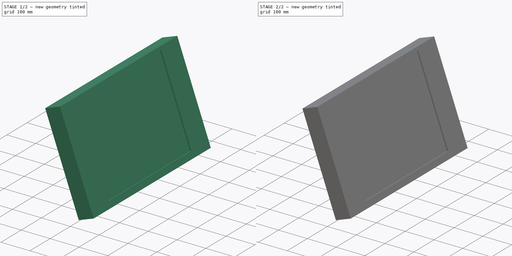
[diagram: build sequence overview — one tinted view per stage of 2, left to right]
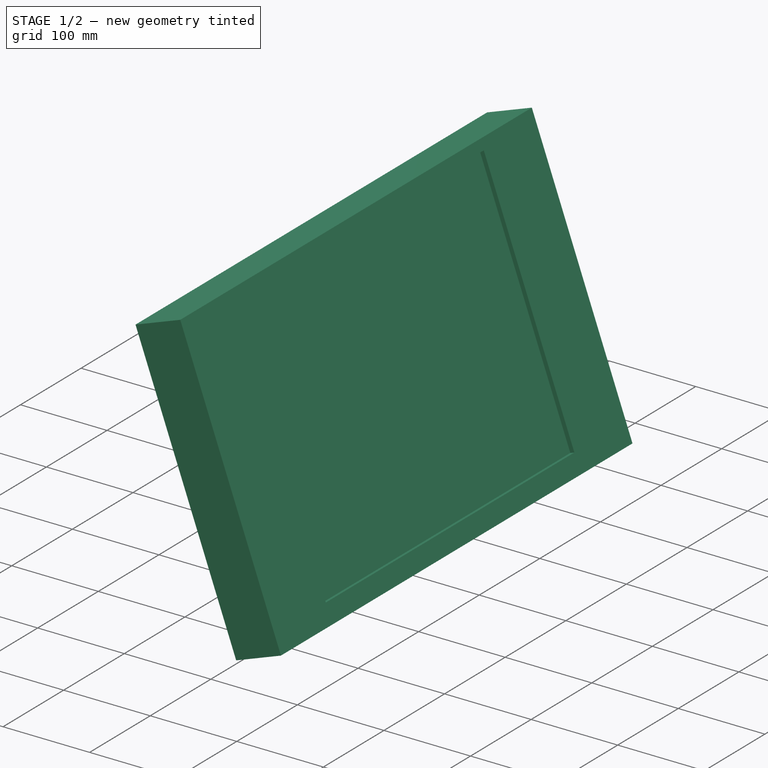
[diagram: stage 1 of 2 — iso view after this stage's code; geometry added in this stage tinted green]
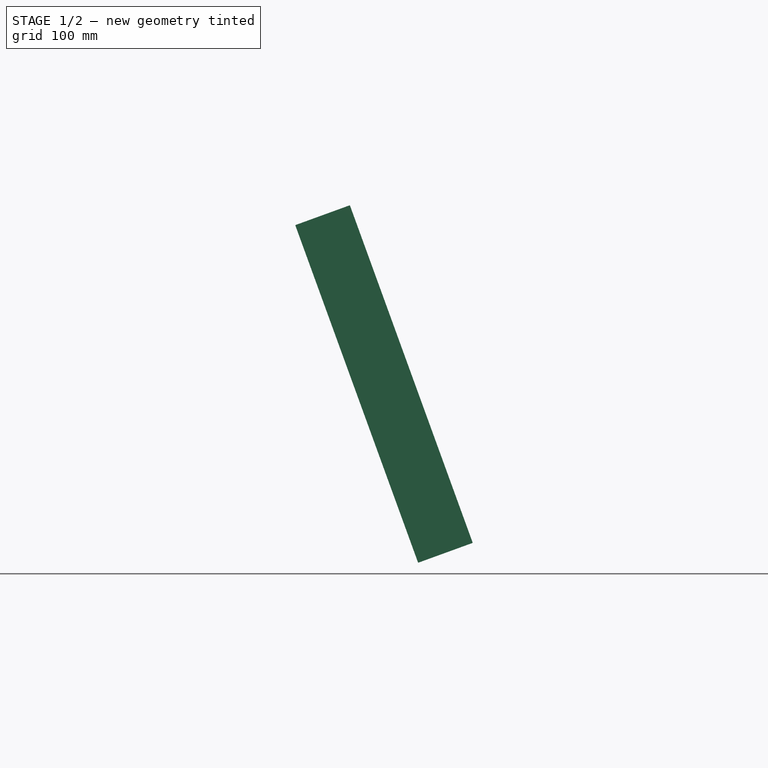
[diagram: stage 1 of 2 — front view after this stage's code; geometry added in this stage tinted green]
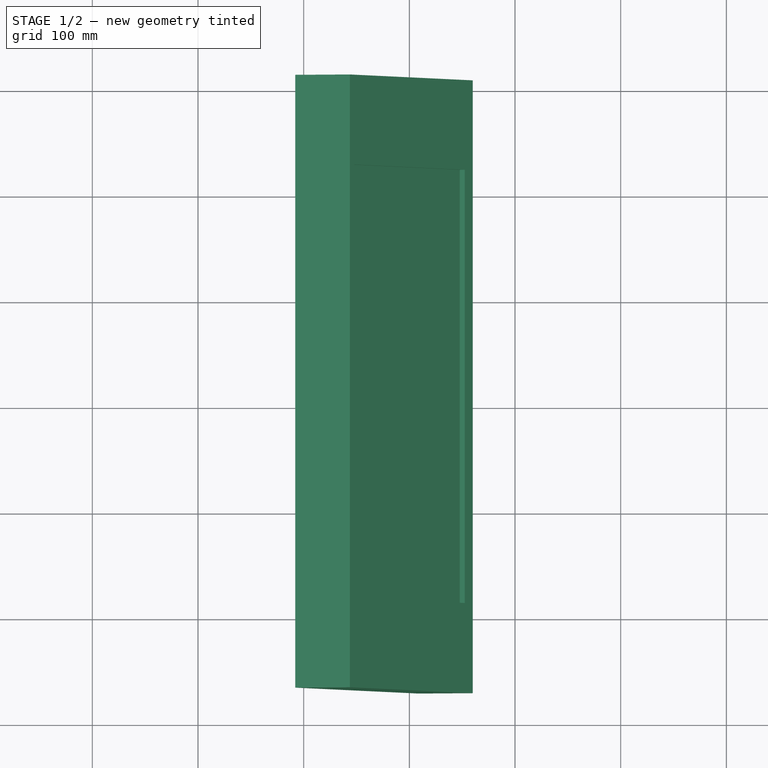
[diagram: stage 1 of 2 — top view after this stage's code; geometry added in this stage tinted green]
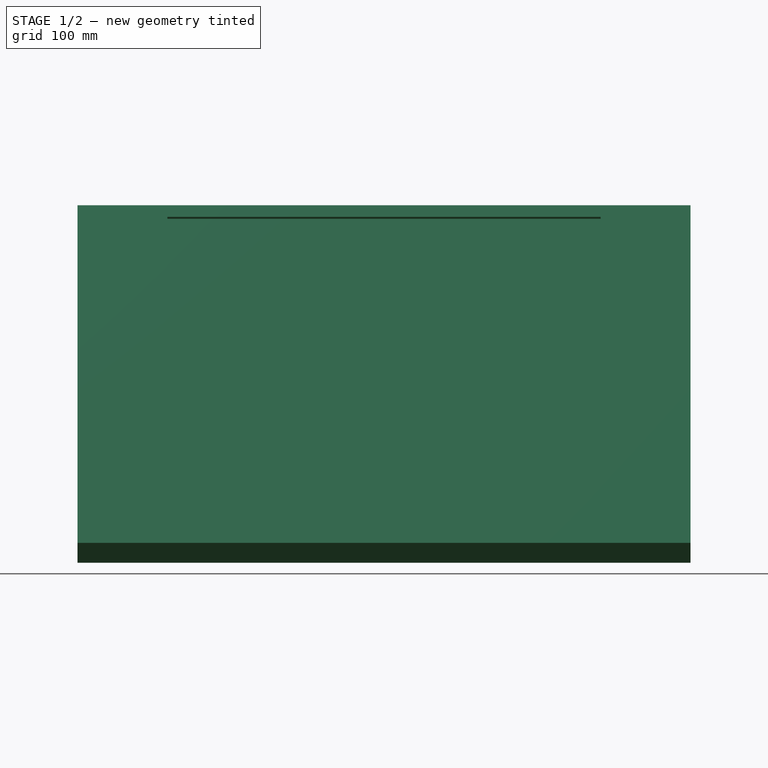
[diagram: stage 1 of 2 — right view after this stage's code; geometry added in this stage tinted green]
FCSTD DOCUMENT  (FreeCAD 0.17R13522 (Git))
Label: 1106_Monitor_339x283
License: All rights reserved
LicenseURL: http://en.wikipedia.org/wiki/All_rights_reserved
objects: Sketcher::SketchObject×4, PartDesign::Pad×2, PartDesign::Pocket×2, PartDesign::Body×1, App::Part×1, Spreadsheet::Sheet×1
note: 13 computed .brp shape members not serialized (recipe doc carries the construction recipe); baked Part::Feature solids carry a one-line shape summary decoded from their .brp

FEATURE [Sketcher::SketchObject] Sketch002
  MapMode = 5
  Placement = pos=(0,0,0) rot=(0,0.707107,0.707107;3.14159rad)
  Support = -> [XZ_Plane001]
  expr: Constraints[8] = Monitor.H_monitor
  expr: Constraints[7] = Monitor.D_monitor
  sketch-geometry (7):
    g0: LineSegment StartX=40 StartY=50 StartZ=0 EndX=156.287 EndY=369.495 EndZ=0
    g1: LineSegment StartX=156.287 StartY=369.495 StartZ=0 EndX=207.97 EndY=350.684 EndZ=0
    g2: LineSegment StartX=207.97 StartY=350.684 StartZ=0 EndX=91.6831 EndY=31.1889 EndZ=0
    g3: LineSegment StartX=91.6831 StartY=31.1889 StartZ=0 EndX=40 EndY=50 EndZ=0
    g4: LineSegment [constr] StartX=40 StartY=50 StartZ=0 EndX=0 EndY=0 EndZ=0
    g5: LineSegment [constr] StartX=0 StartY=0 StartZ=0 EndX=0 EndY=50 EndZ=0
    g6: LineSegment [constr] StartX=0 StartY=50 StartZ=0 EndX=40 EndY=50 EndZ=0
  constraints (19):
    c: Coincident(g2,g1)
    c: Coincident(g3,g2)
    c: Coincident(g3,g0)
    c: Perpendicular(g1,g0)
    c: Perpendicular(g2,g1)
    c: Perpendicular(g2,g3)
    c: Coincident(g1,g0)
    c: Distance(g1) = 55
    c: Distance(g2) = 340
    c: Coincident(g4,g0)
    c: Coincident(g4,g-1)
    c: Coincident(g5,g-1)
    c: PointOnObject(g5,g-2)
    c: Coincident(g6,g5)
    c: Coincident(g6,g0)
    c: Horizontal(g6)
    c: Distance(g5) = 50
    c: Distance(g6) = 40
    c: Angle(g0,g6) = 1.91986
FEATURE [PartDesign::Pad] Pad002
  Length = 410
  Length2 = 170
  Placement = pos=(0,0,0) rot=(1,0,0;1.5708rad)
  Profile = -> Sketch002
  Type = 4
  expr: Length = Monitor.W_monitor
FEATURE [Sketcher::SketchObject] Sketch
  ExternalGeometry = -> [Pad002]
  MapMode = 5
  Placement = pos=(-19.2512,1e-12,-7.00686) rot=(0.573576,0,0.819152;3.14159rad)
  Support = -> [Pad002]
  expr: Constraints[19] = Monitor.W_monitor
  expr: Constraints[18] = Monitor.H_monitor * 0.90000000000000002
  sketch-geometry (8):
    g0: LineSegment StartX=82.9319 StartY=85 StartZ=0 EndX=388.932 EndY=85 EndZ=0
    g1: LineSegment StartX=388.932 StartY=85 StartZ=0 EndX=388.932 EndY=-325 EndZ=0
    g2: LineSegment StartX=388.932 StartY=-325 StartZ=0 EndX=82.9319 EndY=-325 EndZ=0
    g3: LineSegment StartX=82.9319 StartY=-325 StartZ=0 EndX=82.9319 EndY=-120 EndZ=0
    g4: LineSegment StartX=82.9319 StartY=-120 StartZ=0 EndX=82.9319 EndY=85 EndZ=0
    g5: LineSegment [constr] StartX=60.6654 StartY=-410 StartZ=0 EndX=60.6654 EndY=-120 EndZ=0
    g6: LineSegment [constr] StartX=60.6654 StartY=-120 StartZ=0 EndX=60.6654 EndY=170 EndZ=0
    g7: LineSegment [constr] StartX=82.9319 StartY=-120 StartZ=0 EndX=60.6654 EndY=-120 EndZ=0
  constraints (21):
    c: Coincident(g0,g1)
    c: Coincident(g1,g2)
    c: Horizontal(g0)
    c: Horizontal(g2)
    c: Vertical(g1)
    c: Coincident(g3,g2)
    c: Coincident(g4,g3)
    c: Coincident(g4,g0)
    c: Parallel(g3,g4)
    c: Equal(g3,g4)
    c: Coincident(g5,g-6)
    c: Coincident(g6,g5)
    c: Coincident(g6,g-6)
    c: Equal(g5,g6)
    c: Parallel(g6,g5)
    c: Coincident(g7,g3)
    c: Coincident(g7,g5)
    c: Perpendicular(g4,g7)
    c: DistanceX(g0,g0) = 306
    c: DistanceY(g1,g1) = 410
    c: Horizontal(g7)
FEATURE [PartDesign::Pocket] Pocket
  BaseFeature = -> Pad002
  Length = 5
  Length2 = 100
  Placement = pos=(0,0,0) rot=(1,0,0;1.5708rad)
  Profile = -> Sketch
  Type = 0
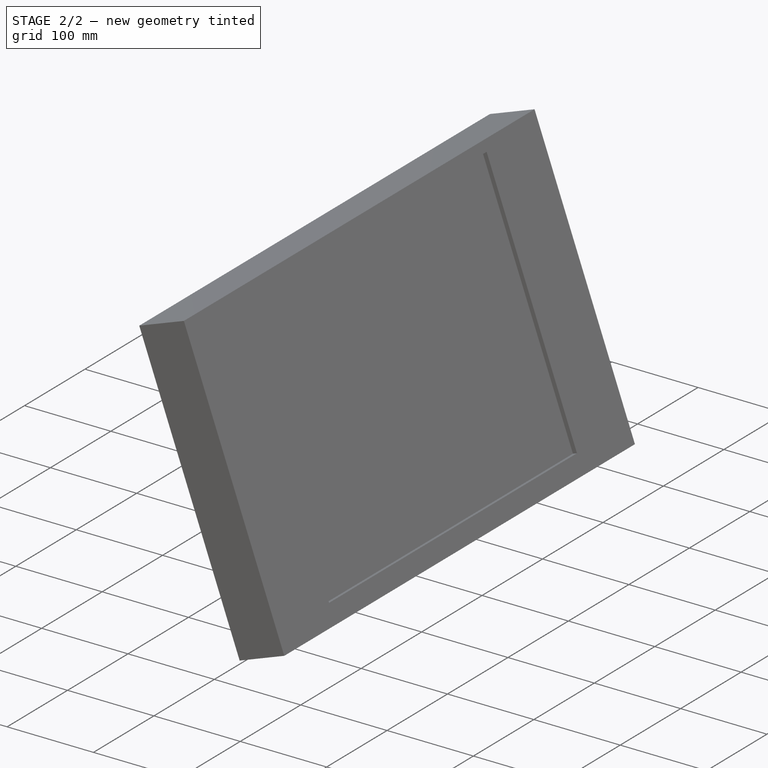
[diagram: stage 2 of 2 — iso view after this stage's code; geometry added in this stage tinted green]
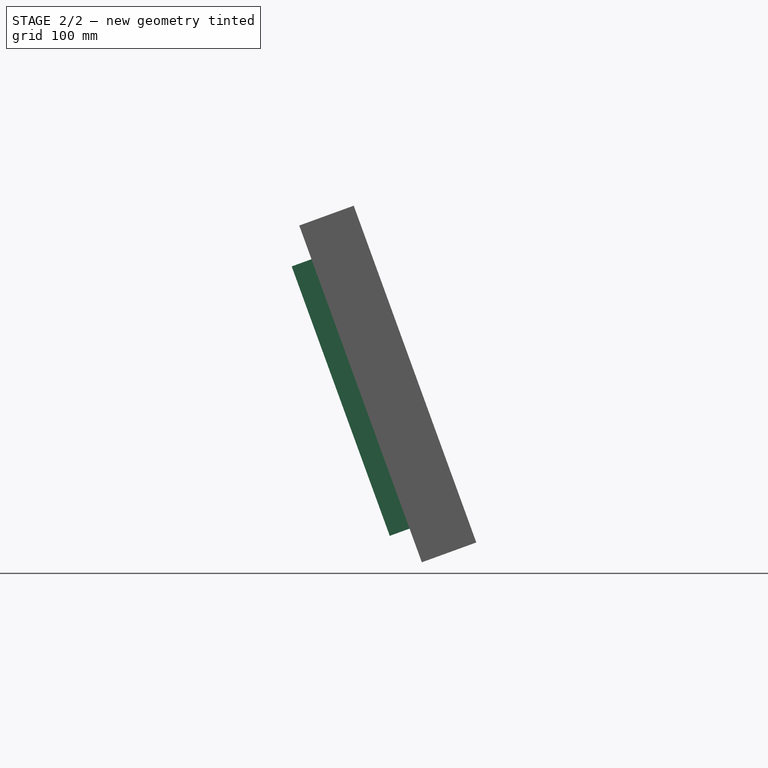
[diagram: stage 2 of 2 — front view after this stage's code; geometry added in this stage tinted green]
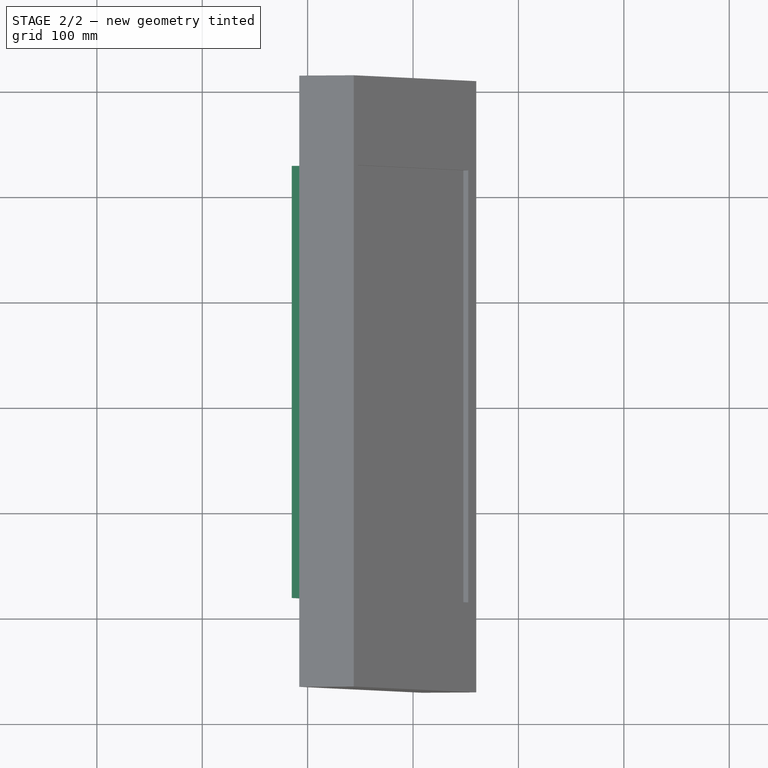
[diagram: stage 2 of 2 — top view after this stage's code; geometry added in this stage tinted green]
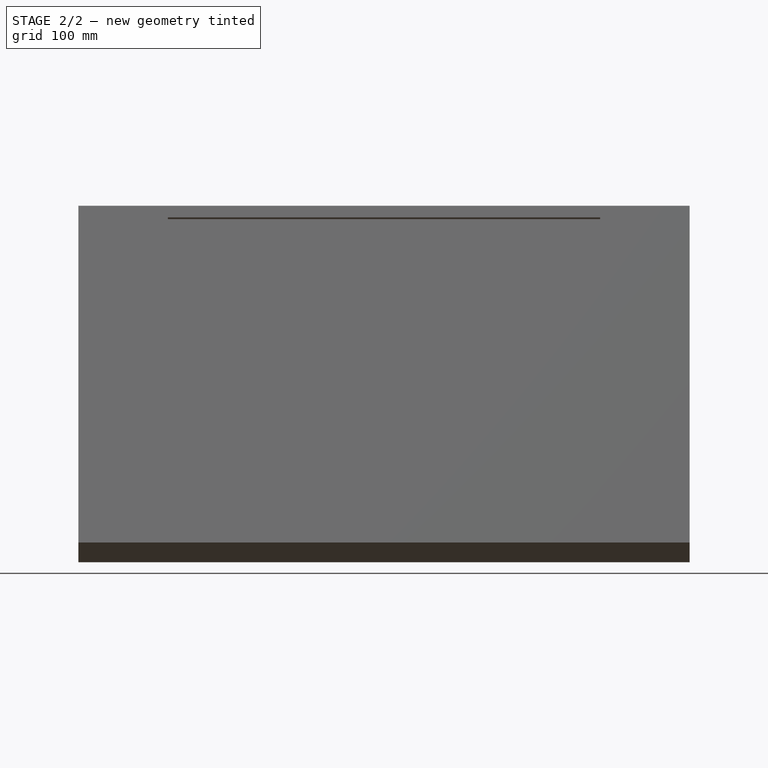
[diagram: stage 2 of 2 — right view after this stage's code; geometry added in this stage tinted green]
FEATURE [Sketcher::SketchObject] Sketch003
  ExternalGeometry = -> [Pocket]
  MapMode = 5
  Placement = pos=(-70.9343,3e-12,-25.818) rot=(0.819152,0,-0.573576;3.14159rad)
  Support = -> [Pocket]
  expr: Constraints[20] = Monitor.W_monitor
  expr: Constraints[19] = Monitor.H_monitor * 0.80000000000000004
  sketch-geometry (9):
    g0: LineSegment StartX=-366.665 StartY=-325 StartZ=0 EndX=-94.6654 EndY=-325 EndZ=0
    g1: LineSegment StartX=-94.6654 StartY=85 StartZ=0 EndX=-366.665 EndY=85 EndZ=0
    g2: LineSegment StartX=-366.665 StartY=85 StartZ=0 EndX=-366.665 EndY=-325 EndZ=0
    g3: LineSegment StartX=-94.6654 StartY=-325 StartZ=0 EndX=-94.6654 EndY=-120 EndZ=0
    g4: LineSegment StartX=-94.6654 StartY=-120 StartZ=0 EndX=-94.6654 EndY=85 EndZ=0
    g5: LineSegment [constr] StartX=-60.6654 StartY=170 StartZ=0 EndX=-60.6654 EndY=-120 EndZ=0
    g6: LineSegment [constr] StartX=-60.6654 StartY=-120 StartZ=0 EndX=-94.6654 EndY=-120 EndZ=0
    g7: LineSegment [constr] StartX=-60.6654 StartY=-120 StartZ=0 EndX=-60.6654 EndY=-410 EndZ=0
    g8: LineSegment [constr] StartX=-366.665 StartY=85 StartZ=0 EndX=-400.665 EndY=85 EndZ=0
  constraints (25):
    c: Coincident(g1,g2)
    c: Coincident(g2,g0)
    c: Horizontal(g0)
    c: Horizontal(g1)
    c: Vertical(g2)
    c: Coincident(g3,g0)
    c: Vertical(g3)
    c: Coincident(g4,g3)
    c: Coincident(g4,g1)
    c: Vertical(g4)
    c: Equal(g4,g3)
    c: Coincident(g6,g5)
    c: Coincident(g6,g3)
    c: Perpendicular(g3,g6)
    c: Coincident(g5,g-3)
    c: Coincident(g7,g5)
    c: Coincident(g7,g-3)
    c: Equal(g7,g5)
    c: Parallel(g5,g7)
    c: DistanceX(g1,g1) = 272
    c: DistanceY(g2,g2) = 410
    c: Coincident(g8,g1)
    c: PointOnObject(g8,g-4)
    c: Horizontal(g8)
    c: Equal(g6,g8)
FEATURE [PartDesign::Pad] Pad
  BaseFeature = -> Pocket
  Length = 20
  Length2 = 100
  Placement = pos=(0,0,0) rot=(1,0,0;1.5708rad)
  Profile = -> Sketch003
  Type = 0
FEATURE [Sketcher::SketchObject] Sketch004
  ExternalGeometry = -> [Pad]
  MapMode = 5
  Placement = pos=(-89.7281,3e-12,-32.6584) rot=(0.819152,0,-0.573576;3.14159rad)
  Support = -> [Pad]
  expr: Constraints[14] = Monitor.W_mount
  expr: Constraints[13] = Monitor.H_mount
  expr: Constraints[30] = Monitor.H0_mount
  sketch-geometry (12):
    g0: LineSegment [constr] StartX=-60.6654 StartY=-120 StartZ=0 EndX=-160.665 EndY=-120 EndZ=0
    g1: LineSegment [constr] StartX=-160.665 StartY=-120 StartZ=0 EndX=-160.665 EndY=-82.5 EndZ=0
    g2: LineSegment [constr] StartX=-160.665 StartY=-82.5 StartZ=0 EndX=-235.665 EndY=-82.5 EndZ=0
    g3: LineSegment [constr] StartX=-235.665 StartY=-82.5 StartZ=0 EndX=-235.665 EndY=-157.5 EndZ=0
    g4: LineSegment [constr] StartX=-235.665 StartY=-157.5 StartZ=0 EndX=-160.665 EndY=-157.5 EndZ=0
    g5: LineSegment [constr] StartX=-160.665 StartY=-157.5 StartZ=0 EndX=-160.665 EndY=-120 EndZ=0
    g6: Circle CenterX=-235.665 CenterY=-82.5 CenterZ=0 NormalX=0 NormalY=0 NormalZ=1 AngleXU=0 Radius=8
    g7: Circle CenterX=-160.665 CenterY=-82.5 CenterZ=0 NormalX=0 NormalY=0 NormalZ=1 AngleXU=0 Radius=8
    g8: Circle CenterX=-160.665 CenterY=-157.5 CenterZ=0 NormalX=0 NormalY=0 NormalZ=1 AngleXU=0 Radius=8
    g9: Circle CenterX=-235.665 CenterY=-157.5 CenterZ=0 NormalX=0 NormalY=0 NormalZ=1 AngleXU=0 Radius=8
    g10: LineSegment [constr] StartX=-60.6654 StartY=-410 StartZ=0 EndX=-60.6654 EndY=-120 EndZ=0
    g11: LineSegment [constr] StartX=-60.6654 StartY=-120 StartZ=0 EndX=-60.6654 EndY=170 EndZ=0
  constraints (31):
    c: Coincident(g1,g0)
    c: Vertical(g1)
    c: Coincident(g2,g1)
    c: Horizontal(g2)
    c: Coincident(g3,g2)
    c: Vertical(g3)
    c: Coincident(g4,g3)
    c: Coincident(g5,g4)
    c: Coincident(g5,g0)
    c: Equal(g5,g1)
    c: Equal(g5,g1)
    c: Parallel(g5,g1)
    c: Parallel(g4,g2)
    c: DistanceX(g2,g2) = 75
    c: DistanceY(g3,g3) = 75
    c: Horizontal(g0)
    c: Coincident(g6,g2)
    c: Coincident(g7,g1)
    c: Coincident(g8,g4)
    c: Equal(g6,g7)
    c: Equal(g7,g8)
    c: Equal(g8,g9)
    c: Radius(g6) = 8
    c: Coincident(g9,g3)
    c: Coincident(g10,g-3)
    c: Coincident(g11,g10)
    c: Coincident(g11,g-3)
    c: Coincident(g0,g10)
    c: Equal(g11,g10)
    c: Parallel(g11,g10)
    c: DistanceX(g0,g0) = 100
FEATURE [PartDesign::Pocket] Pocket001
  BaseFeature = -> Pad
  Length = 10
  Length2 = 100
  Placement = pos=(0,0,0) rot=(1,0,0;1.5708rad)
  Profile = -> Sketch004
  Type = 0
FEATURE [PartDesign::Body] Pad002Body
  Group = -> [Sketch002,Pad002,Sketch,Pocket,Sketch003,Pad,Sketch004,Pocket001]
  Origin = -> Origin001
  Tip = -> Pocket001
FEATURE [App::Part] Part
  Group = -> [Pad002Body]
  License = CC BY 3.0
  LicenseURL = http://creativecommons.org/licenses/by/3.0/
  Origin = -> Origin
FEATURE [Spreadsheet::Sheet] Spreadsheet  label="Monitor"
  cells = B3=Monitor dimensions; B4=Width; C4(W_monitor)=410; D4=W_monitor; B5=Height; C5(H_monitor)=340; D5=H_monitor; B6=Depth; C6(D_monitor)=55; D6=D_monitor; B8=Monitor Mounting; B9=Width; C9(W_mount)=75; D9=W_mount; B10=Height; C10(H_mount)=75; D10=H_mount; B11=HeightMounting; C11(H0_mount)=100; D11=H0_mount; B12=ScrewSize; C12(D_screw)=8; D12=D_screw
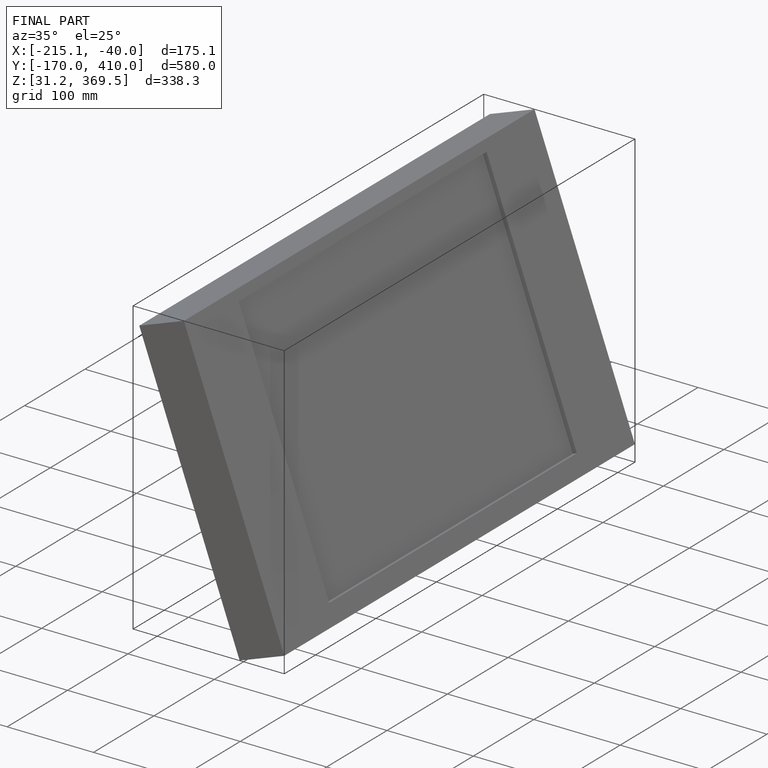
[diagram: finished part — iso view with bounding-box wireframe]
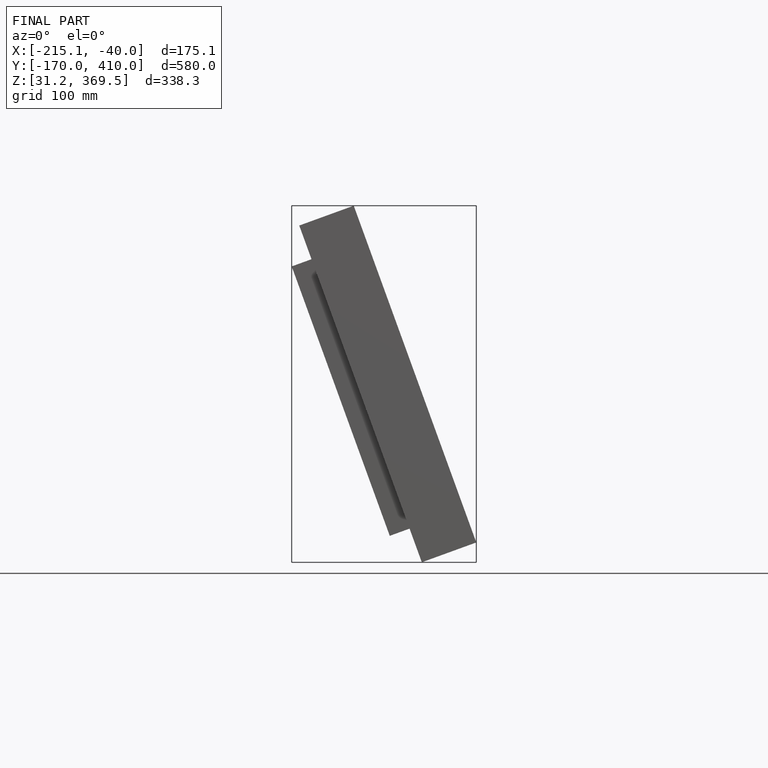
[diagram: finished part — front view with bounding-box wireframe]
